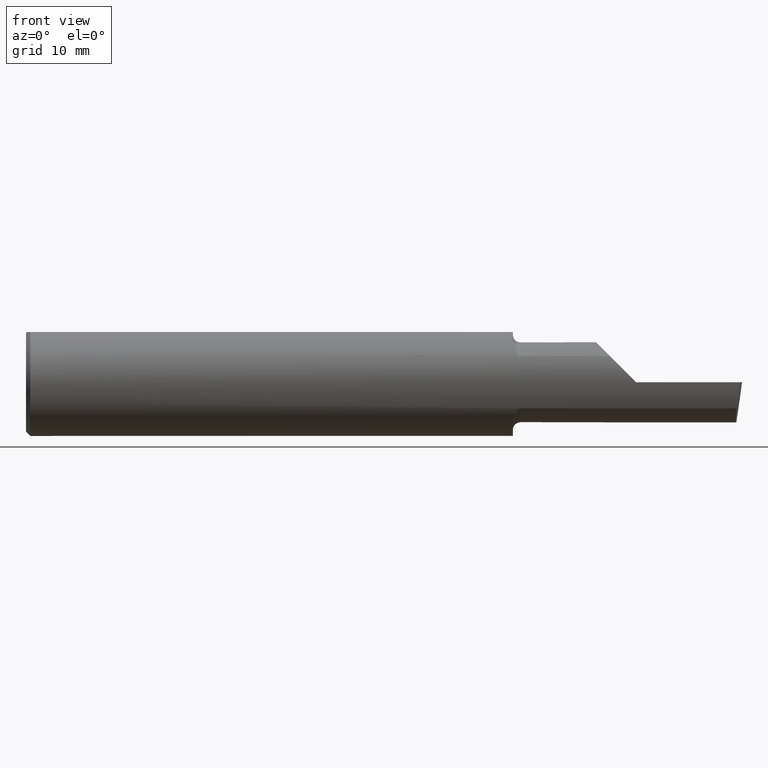
[diagram: clean part render]
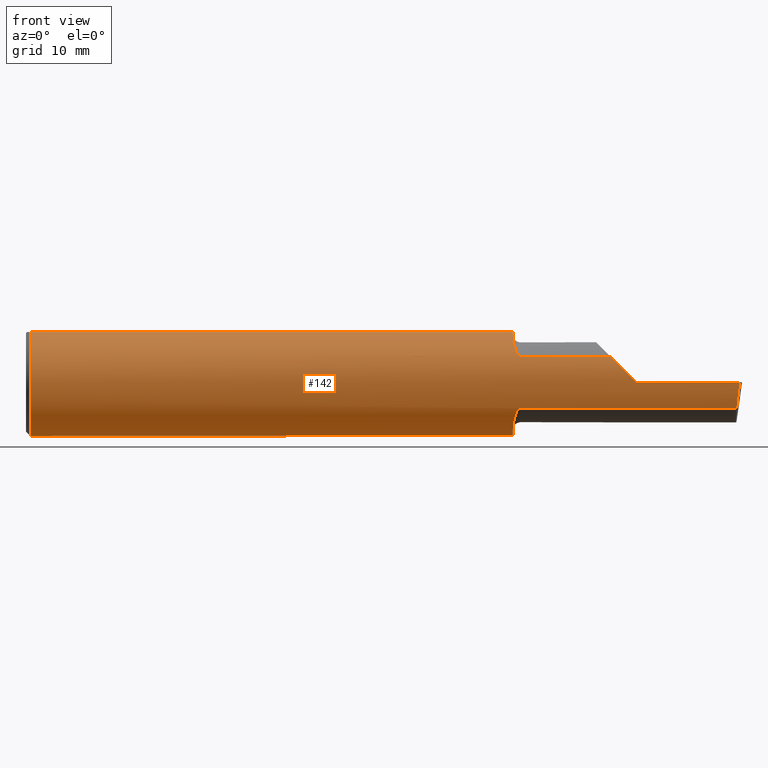
[diagram: same view with one face highlighted and labeled with its STEP entity id]
A machine part, front view. The second image highlights one B-rep face of the part: STEP entity #142.
In plain terms, the highlighted cylindrical surface (partial cylindrical patch) has radius 4.7587 mm, axis along (-1, -0, -0).
Its self-contained STEP definition (entity closure, byte-faithful):
#2 = CARTESIAN_POINT ( 'NONE',  ( 1.713764108097882932, -0.1573043405450769705, 0.1018329020719639239 ) ) ;
#3 = DIRECTION ( 'NONE',  ( 0.000000000000000000, 0.000000000000000000, 1.000000000000000000 ) ) ;
#4 = ORIENTED_EDGE ( 'NONE', *, *, #262, .F. ) ;
#5 = EDGE_CURVE ( 'NONE', #229, #623, #480, .T. ) ;
#6 = DIRECTION ( 'NONE',  ( -1.000000000000000000, -0.000000000000000000, -0.000000000000000000 ) ) ;
#7 = CARTESIAN_POINT ( 'NONE',  ( 1.701903396790307221, -0.1248165254919059997, -0.1399798634953948184 ) ) ;
#10 = CARTESIAN_POINT ( 'NONE',  ( 1.706142321956750418, -0.1426151417460928550, 0.1217894822571234936 ) ) ;
#11 = CARTESIAN_POINT ( 'NONE',  ( 2.487725449370724817, -0.1873500000000000443, -0.03213820089768506388 ) ) ;
#15 = CARTESIAN_POINT ( 'NONE',  ( 1.700383728133729733, -0.1114837668894149425, 0.1508119329971098488 ) ) ;
#20 = DIRECTION ( 'NONE',  ( 0.000000000000000000, 0.000000000000000000, 1.000000000000000000 ) ) ;
#23 = AXIS2_PLACEMENT_3D ( 'NONE', #495, #6, #281 ) ;
#25 = CARTESIAN_POINT ( 'NONE',  ( 0.000000000000000000, 0.06597272163553663527, 0.1753499999999999781 ) ) ;
#29 = CARTESIAN_POINT ( 'NONE',  ( 2.129999999999999893, -0.1873499999999999888, 1.065442715258197396E-16 ) ) ;
#36 = DIRECTION ( 'NONE',  ( 1.000000000000000000, 0.000000000000000000, 0.000000000000000000 ) ) ;
#37 = ORIENTED_EDGE ( 'NONE', *, *, #5, .T. ) ;
#39 = LINE ( 'NONE', #635, #343 ) ;
#41 = VERTEX_POINT ( 'NONE', #102 ) ;
#43 = DIRECTION ( 'NONE',  ( 0.000000000000000000, 1.000000000000000000, 0.000000000000000000 ) ) ;
#49 = CARTESIAN_POINT ( 'NONE',  ( 1.942499999999999893, -0.1635956445993030084, 0.09130436773856176469 ) ) ;
#57 = CARTESIAN_POINT ( 'NONE',  ( 1.699999999999999956, -0.09715400696864101571, -0.1601908905959925355 ) ) ;
#59 = CARTESIAN_POINT ( 'NONE',  ( 1.722800914500664637, -0.1635956445997546194, 0.09130436773775278680 ) ) ;
#62 = CARTESIAN_POINT ( 'NONE',  ( 1.699999999999999734, -0.1045012500212951778, 0.1557348687830036327 ) ) ;
#66 = CIRCLE ( 'NONE', #542, 0.1873499999999999888 ) ;
#69 = ORIENTED_EDGE ( 'NONE', *, *, #280, .T. ) ;
#73 = ORIENTED_EDGE ( 'NONE', *, *, #219, .T. ) ;
#75 = EDGE_CURVE ( 'NONE', #590, #540, #203, .T. ) ;
#78 = CARTESIAN_POINT ( 'NONE',  ( 2.038695632261437130, -0.1635956445993029529, 0.09130436773856191734 ) ) ;
#84 = VERTEX_POINT ( 'NONE', #630 ) ;
#98 = VECTOR ( 'NONE', #473, 39.37007874015748143 ) ;
#99 = CARTESIAN_POINT ( 'NONE',  ( 2.491672876940991710, -0.1873499999999999888, 6.915950918908297591E-17 ) ) ;
#102 = CARTESIAN_POINT ( 'NONE',  ( 0.01499999999999999424, 0.06597272163553663527, 0.1753499999999999781 ) ) ;
#114 = CARTESIAN_POINT ( 'NONE',  ( 2.481080296960508580, -0.1635956445993030084, -0.09130436773856176469 ) ) ;
#126 = AXIS2_PLACEMENT_3D ( 'NONE', #252, #660, #608 ) ;
#142 = ADVANCED_FACE ( 'NONE', ( #592 ), #645, .T. ) ;
#146 = AXIS2_PLACEMENT_3D ( 'NONE', #497, #228, #3 ) ;
#159 = CARTESIAN_POINT ( 'NONE',  ( 1.708072954143139865, -0.1479074971576196662, 0.1152872342625233942 ) ) ;
#161 = CARTESIAN_POINT ( 'NONE',  ( 1.724999999999999867, -0.1635956445993027586, 0.09130436773856215327 ) ) ;
#162 = CARTESIAN_POINT ( 'NONE',  ( 1.712184598714912687, -0.1550322129197695409, -0.1052705638704085067 ) ) ;
#166 = CARTESIAN_POINT ( 'NONE',  ( 1.724999999999999867, -0.1635956445993029251, -0.09130436773856190347 ) ) ;
#167 = EDGE_CURVE ( 'NONE', #601, #306, #634, .T. ) ;
#172 = CARTESIAN_POINT ( 'NONE',  ( 2.038695632261437130, -0.1635956445993029529, 0.09130436773856191734 ) ) ;
#174 = ORIENTED_EDGE ( 'NONE', *, *, #75, .F. ) ;
#186 = CARTESIAN_POINT ( 'NONE',  ( 1.699999999999999956, -0.09715400696864101571, -0.1601908905959925355 ) ) ;
#203 = LINE ( 'NONE', #49, #286 ) ;
#207 = CARTESIAN_POINT ( 'NONE',  ( 1.699999999999999956, 0.000000000000000000, 0.000000000000000000 ) ) ;
#210 = CIRCLE ( 'NONE', #606, 0.1873499999999999888 ) ;
#219 = EDGE_CURVE ( 'NONE', #84, #518, #386, .T. ) ;
#224 = CARTESIAN_POINT ( 'NONE',  ( 2.491672876940991710, -0.1873499999999999888, 6.915950918908297591E-17 ) ) ;
#228 = DIRECTION ( 'NONE',  ( -1.000000000000000000, -0.000000000000000000, -0.000000000000000000 ) ) ;
#229 = VERTEX_POINT ( 'NONE', #503 ) ;
#231 = CARTESIAN_POINT ( 'NONE',  ( 1.722779935319434408, -0.1635956445993029529, -0.09130436773856197286 ) ) ;
#235 = CARTESIAN_POINT ( 'NONE',  ( 2.066758987970638284, -0.1792580844883770730, 0.06324101202936138755 ) ) ;
#240 = CARTESIAN_POINT ( 'NONE',  ( 2.097861799102314961, -0.1873500000000000165, 0.03213820089768509858 ) ) ;
#244 = LINE ( 'NONE', #25, #605 ) ;
#252 = CARTESIAN_POINT ( 'NONE',  ( 1.699999999999999956, 0.000000000000000000, 0.000000000000000000 ) ) ;
#255 = CARTESIAN_POINT ( 'NONE',  ( 2.129999999999999893, -0.1873499999999999888, 1.065442715258197396E-16 ) ) ;
#262 = EDGE_CURVE ( 'NONE', #646, #623, #210, .T. ) ;
#266 = EDGE_CURVE ( 'NONE', #446, #540, #345, .T. ) ;
#269 = DIRECTION ( 'NONE',  ( 1.000000000000000000, 6.829619984160658046E-18, 0.000000000000000000 ) ) ;
#273 = CARTESIAN_POINT ( 'NONE',  ( 0.01499999999999999424, 0.000000000000000000, -0.1873499999999999888 ) ) ;
#278 = CARTESIAN_POINT ( 'NONE',  ( 1.717975941902153192, -0.1612443294219078060, -0.09540922431498248535 ) ) ;
#280 = EDGE_CURVE ( 'NONE', #41, #625, #244, .T. ) ;
#281 = DIRECTION ( 'NONE',  ( 0.000000000000000000, 0.000000000000000000, 1.000000000000000000 ) ) ;
#282 = B_SPLINE_CURVE_WITH_KNOTS ( 'NONE', 3,
 ( #492, #62, #15, #642, #333, #10, #159, #436, #2, #555, #602, #599, #59, #547 ),
 .UNSPECIFIED., .F., .F.,
 ( 4, 2, 2, 2, 2, 2, 4 ),
 ( 0.0002471551878304205298, 0.0008987327522055599521, 0.001550310316580699212, 0.002201887880955839122, 0.002527676663143408210, 0.002690571054237193404, 0.002853465445330977731 ),
 .UNSPECIFIED. ) ;
#286 = VECTOR ( 'NONE', #269, 39.37007874015748143 ) ;
#291 = CARTESIAN_POINT ( 'NONE',  ( 1.700000000000000178, -0.1045082199249679489, -0.1557306416133595883 ) ) ;
#300 = CIRCLE ( 'NONE', #126, 0.1873499999999999888 ) ;
#306 = VERTEX_POINT ( 'NONE', #186 ) ;
#321 = EDGE_CURVE ( 'NONE', #306, #625, #300, .T. ) ;
#323 = ORIENTED_EDGE ( 'NONE', *, *, #167, .F. ) ;
#327 = CARTESIAN_POINT ( 'NONE',  ( 1.700384441902395238, -0.1115101367984837888, -0.1507946173152225899 ) ) ;
#333 = CARTESIAN_POINT ( 'NONE',  ( 1.703025912205683445, -0.1310442973014112333, 0.1341609063345044761 ) ) ;
#337 = CARTESIAN_POINT ( 'NONE',  ( 1.724999999999999867, -0.1635956445993029251, -0.09130436773856190347 ) ) ;
#339 = ORIENTED_EDGE ( 'NONE', *, *, #442, .F. ) ;
#343 = VECTOR ( 'NONE', #371, 39.37007874015748143 ) ;
#345 =( BOUNDED_CURVE ( )  B_SPLINE_CURVE ( 3, ( #29, #240, #235, #78 ),
 .UNSPECIFIED., .F., .F. ) 
 B_SPLINE_CURVE_WITH_KNOTS ( ( 4, 4 ),
 ( 4.712388980384689674, 5.221437360734125122 ),
 .UNSPECIFIED. ) 
 CURVE ( )  GEOMETRIC_REPRESENTATION_ITEM ( )  RATIONAL_B_SPLINE_CURVE ( ( 1.000000000000000000, 0.9785221379938656705, 0.9785221379938656705, 1.000000000000000000 ) ) 
 REPRESENTATION_ITEM ( '' )  );
#362 = DIRECTION ( 'NONE',  ( 1.000000000000000000, 6.829619984160658046E-18, 0.000000000000000000 ) ) ;
#371 = DIRECTION ( 'NONE',  ( -1.000000000000000000, -0.000000000000000000, -0.000000000000000000 ) ) ;
#378 = CARTESIAN_POINT ( 'NONE',  ( 1.708068207442170472, -0.1478915270140208349, -0.1153063024254927099 ) ) ;
#379 = CARTESIAN_POINT ( 'NONE',  ( 0.01499999999999997863, -0.06597272163553657975, 0.1753499999999999781 ) ) ;
#381 = CARTESIAN_POINT ( 'NONE',  ( 1.706145841430604326, -0.1426194794824336698, -0.1217813759115470157 ) ) ;
#386 =( BOUNDED_CURVE ( )  B_SPLINE_CURVE ( 3, ( #114, #603, #11, #224 ),
 .UNSPECIFIED., .F., .T. ) 
 B_SPLINE_CURVE_WITH_KNOTS ( ( 4, 4 ),
 ( 0.8516985021657650368, 1.360746882515200484 ),
 .UNSPECIFIED. ) 
 CURVE ( )  GEOMETRIC_REPRESENTATION_ITEM ( )  RATIONAL_B_SPLINE_CURVE ( ( 1.000000000000000000, 0.9785221379938656705, 0.9785221379938656705, 1.000000000000000000 ) ) 
 REPRESENTATION_ITEM ( '' )  );
#392 = CARTESIAN_POINT ( 'NONE',  ( 1.699999999999999956, -0.09715400696864101571, 0.1601908905959925355 ) ) ;
#397 = VECTOR ( 'NONE', #577, 39.37007874015748143 ) ;
#408 = EDGE_LOOP ( 'NONE', ( #339, #73, #677, #413, #174, #545, #502, #37, #4, #489, #69, #438, #323 ) ) ;
#413 = ORIENTED_EDGE ( 'NONE', *, *, #266, .T. ) ;
#427 = CARTESIAN_POINT ( 'NONE',  ( 0.000000000000000000, -0.06597272163553657975, 0.1753499999999999781 ) ) ;
#436 = CARTESIAN_POINT ( 'NONE',  ( 1.712204638458737049, -0.1550630761760521670, 0.1052254855377565551 ) ) ;
#438 = ORIENTED_EDGE ( 'NONE', *, *, #321, .F. ) ;
#442 = EDGE_CURVE ( 'NONE', #84, #601, #588, .T. ) ;
#446 = VERTEX_POINT ( 'NONE', #255 ) ;
#461 = CARTESIAN_POINT ( 'NONE',  ( 0.01499999999999999424, 0.000000000000000000, 0.000000000000000000 ) ) ;
#467 = EDGE_CURVE ( 'NONE', #518, #446, #39, .T. ) ;
#473 = DIRECTION ( 'NONE',  ( -1.000000000000000000, -0.000000000000000000, -0.000000000000000000 ) ) ;
#476 = CARTESIAN_POINT ( 'NONE',  ( 1.942499999999999893, -0.1635956445993030084, -0.09130436773856176469 ) ) ;
#480 = LINE ( 'NONE', #427, #98 ) ;
#484 = EDGE_CURVE ( 'NONE', #229, #550, #66, .T. ) ;
#489 = ORIENTED_EDGE ( 'NONE', *, *, #664, .F. ) ;
#492 = CARTESIAN_POINT ( 'NONE',  ( 1.699999999999999956, -0.09715400696864101571, 0.1601908905959925355 ) ) ;
#493 = CARTESIAN_POINT ( 'NONE',  ( 1.716814909379087872, -0.1602818635245156220, -0.09702252612905325202 ) ) ;
#495 = CARTESIAN_POINT ( 'NONE',  ( 0.01499999999999999424, 0.000000000000000000, 0.000000000000000000 ) ) ;
#497 = CARTESIAN_POINT ( 'NONE',  ( 0.000000000000000000, 0.000000000000000000, 0.000000000000000000 ) ) ;
#502 = ORIENTED_EDGE ( 'NONE', *, *, #484, .F. ) ;
#503 = CARTESIAN_POINT ( 'NONE',  ( 1.699999999999999956, -0.06597272163553659363, 0.1753499999999999781 ) ) ;
#518 = VERTEX_POINT ( 'NONE', #99 ) ;
#539 = CARTESIAN_POINT ( 'NONE',  ( 1.720881499230869416, -0.1628722075910989386, -0.09260290410947896733 ) ) ;
#540 = VERTEX_POINT ( 'NONE', #172 ) ;
#542 = AXIS2_PLACEMENT_3D ( 'NONE', #207, #362, #43 ) ;
#544 = CARTESIAN_POINT ( 'NONE',  ( 1.713743174082348997, -0.1572750258711007598, -0.1018777902325216644 ) ) ;
#545 = ORIENTED_EDGE ( 'NONE', *, *, #607, .F. ) ;
#547 = CARTESIAN_POINT ( 'NONE',  ( 1.724999999999999867, -0.1635956445993027586, 0.09130436773856215327 ) ) ;
#550 = VERTEX_POINT ( 'NONE', #392 ) ;
#553 = CARTESIAN_POINT ( 'NONE',  ( 1.703041727949557549, -0.1311116946065050415, -0.1340922927843371804 ) ) ;
#555 = CARTESIAN_POINT ( 'NONE',  ( 1.716855994529494334, -0.1603175578889966812, 0.09696363432848482955 ) ) ;
#577 = DIRECTION ( 'NONE',  ( -1.000000000000000000, -6.829619984160658046E-18, -0.000000000000000000 ) ) ;
#588 = LINE ( 'NONE', #476, #397 ) ;
#590 = VERTEX_POINT ( 'NONE', #161 ) ;
#592 = FACE_OUTER_BOUND ( 'NONE', #408, .T. ) ;
#599 = CARTESIAN_POINT ( 'NONE',  ( 1.720903862568968989, -0.1628809688430619684, 0.09258733509388511473 ) ) ;
#601 = VERTEX_POINT ( 'NONE', #337 ) ;
#602 = CARTESIAN_POINT ( 'NONE',  ( 1.718001859868116821, -0.1612625562479369223, 0.09537826053888202871 ) ) ;
#603 = CARTESIAN_POINT ( 'NONE',  ( 2.484117089522337452, -0.1792580844883771007, -0.06324101202936138755 ) ) ;
#605 = VECTOR ( 'NONE', #36, 39.37007874015748143 ) ;
#606 = AXIS2_PLACEMENT_3D ( 'NONE', #461, #614, #20 ) ;
#607 = EDGE_CURVE ( 'NONE', #550, #590, #282, .T. ) ;
#608 = DIRECTION ( 'NONE',  ( 0.000000000000000000, 1.000000000000000000, 0.000000000000000000 ) ) ;
#614 = DIRECTION ( 'NONE',  ( -1.000000000000000000, -0.000000000000000000, -0.000000000000000000 ) ) ;
#623 = VERTEX_POINT ( 'NONE', #379 ) ;
#625 = VERTEX_POINT ( 'NONE', #696 ) ;
#629 = CIRCLE ( 'NONE', #23, 0.1873499999999999888 ) ;
#630 = CARTESIAN_POINT ( 'NONE',  ( 2.481080296960508580, -0.1635956445993030084, -0.09130436773856176469 ) ) ;
#634 = B_SPLINE_CURVE_WITH_KNOTS ( 'NONE', 3,
 ( #166, #231, #539, #278, #493, #544, #162, #378, #381, #553, #7, #327, #291, #57 ),
 .UNSPECIFIED., .F., .F.,
 ( 4, 2, 2, 2, 2, 2, 4 ),
 ( 1.968340875534775581E-07, 0.0001667114270246284366, 0.0003332260199617034032, 0.0006662552058358533905, 0.001332313577584147510, 0.001998371949332441305, 0.002664430321080735534 ),
 .UNSPECIFIED. ) ;
#635 = CARTESIAN_POINT ( 'NONE',  ( 3.377502344341257155E-32, -0.1873499999999999610, 3.267291166268304703E-16 ) ) ;
#642 = CARTESIAN_POINT ( 'NONE',  ( 1.701891754936544654, -0.1247344934163565205, 0.1400506178720503370 ) ) ;
#645 = CYLINDRICAL_SURFACE ( 'NONE', #146, 0.1873499999999999888 ) ;
#646 = VERTEX_POINT ( 'NONE', #273 ) ;
#660 = DIRECTION ( 'NONE',  ( 1.000000000000000000, 6.829619984160658046E-18, 0.000000000000000000 ) ) ;
#664 = EDGE_CURVE ( 'NONE', #41, #646, #629, .T. ) ;
#677 = ORIENTED_EDGE ( 'NONE', *, *, #467, .T. ) ;
#696 = CARTESIAN_POINT ( 'NONE',  ( 1.699999999999999956, 0.06597272163553663527, 0.1753499999999999781 ) ) ;